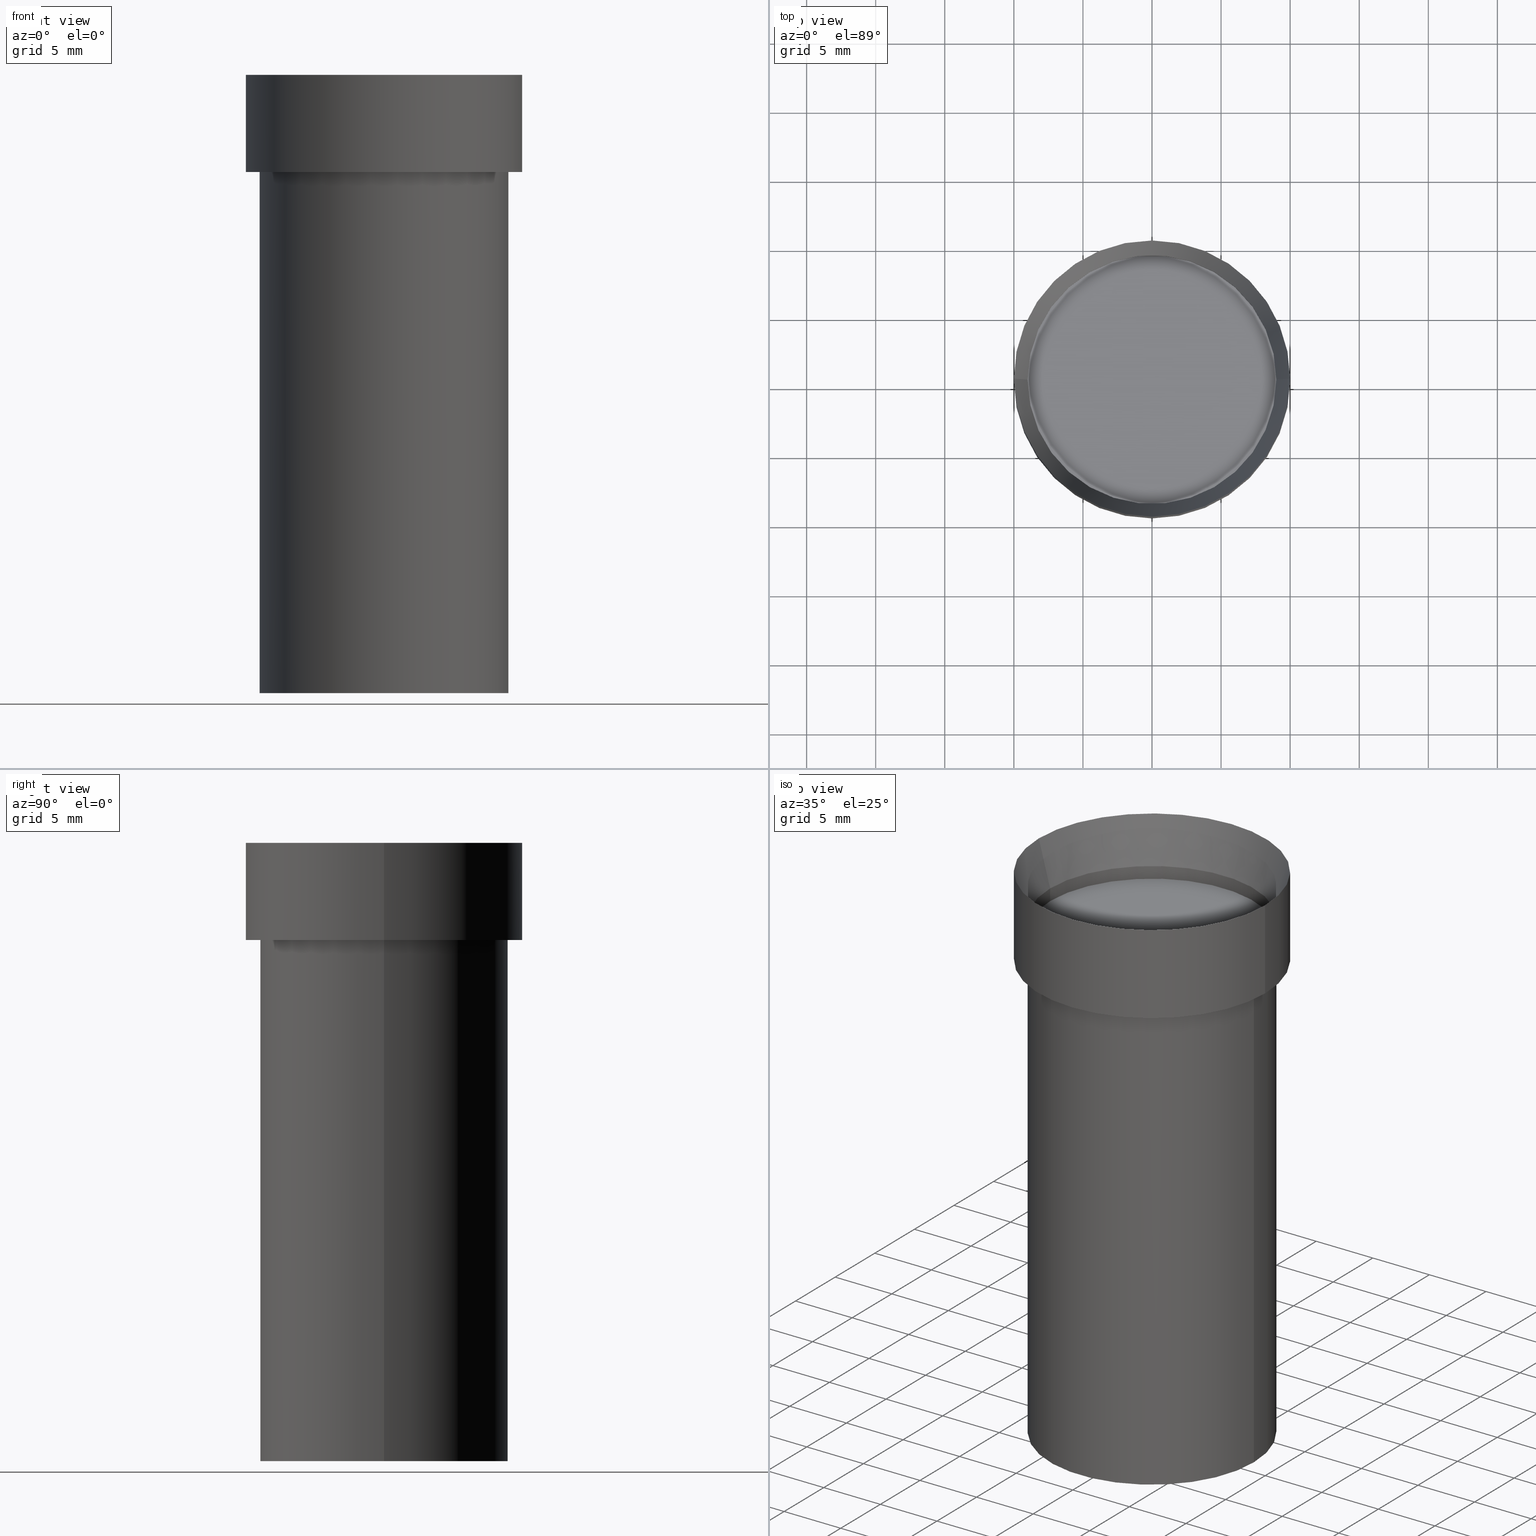
[diagram: canonical four-view strip — front | top / right | iso, engineering-drawing reading convention]
A machine part, canonical four-view strip (front | top / right | iso — engineering-drawing reading convention). The complete STEP part file that produces these views, byte-faithful:
ISO-10303-21;
HEADER;
FILE_DESCRIPTION (( 'STEP AP203' ),
    '1' );
FILE_NAME ('43938.STEP',
    '2024-03-12T19:21:00',
    ( '' ),
    ( '' ),
    'SwSTEP 2.0',
    'SolidWorks 2023',
    '' );
FILE_SCHEMA (( 'CONFIG_CONTROL_DESIGN' ));
ENDSEC;

DATA;
#1 = ORIENTED_EDGE ( 'NONE', *, *, #62, .T. ) ;
#2 = CYLINDRICAL_SURFACE ( 'NONE', #98, 0.3543499999999999983 ) ;
#3 = CARTESIAN_POINT ( 'NONE',  ( -0.3543500000000000538, 2.780716728980804478E-15, 0.07530000000000006133 ) ) ;
#4 = ORIENTED_EDGE ( 'NONE', *, *, #214, .T. ) ;
#5 = EDGE_CURVE ( 'NONE', #405, #118, #221, .T. ) ;
#6 = DIRECTION ( 'NONE',  ( -0.7071067811865715536, 7.493145998870439357E-15, 0.7071067811865232589 ) ) ;
#7 = AXIS2_PLACEMENT_3D ( 'NONE', #139, #283, #177 ) ;
#8 = AXIS2_PLACEMENT_3D ( 'NONE', #421, #245, #462 ) ;
#9 = ORIENTED_EDGE ( 'NONE', *, *, #22, .F. ) ;
#10 = CARTESIAN_POINT ( 'NONE',  ( -1.841438011057409467E-30, 2.629085448148890871E-16, 0.07530000000000006133 ) ) ;
#11 = EDGE_LOOP ( 'NONE', ( #418, #427, #17, #351 ) ) ;
#12 = DIRECTION ( 'NONE',  ( -1.000000000000000000, 6.982962677686265922E-15, -4.876176775795935793E-29 ) ) ;
#13 = COORDINATED_UNIVERSAL_TIME_OFFSET ( 5, 0, .BEHIND. ) ;
#14 = MANIFOLD_SOLID_BREP ( 'Body-Move/Copy2[2]', #251 ) ;
#15 = AXIS2_PLACEMENT_3D ( 'NONE', #336, #134, #24 ) ;
#16 = PERSON_AND_ORGANIZATION_ROLE ( 'design_supplier' ) ;
#17 = ORIENTED_EDGE ( 'NONE', *, *, #238, .T. ) ;
#18 = DIRECTION ( 'NONE',  ( 2.445468806185136597E-29, -3.491481338843145583E-15, -1.000000000000000000 ) ) ;
#19 = DATE_TIME_ROLE ( 'classification_date' ) ;
#20 = EDGE_CURVE ( 'NONE', #103, #246, #381, .T. ) ;
#21 = FACE_OUTER_BOUND ( 'NONE', #33, .T. ) ;
#22 = EDGE_CURVE ( 'NONE', #429, #313, #153, .T. ) ;
#23 = VECTOR ( 'NONE', #273, 39.37007874015748143 ) ;
#24 = DIRECTION ( 'NONE',  ( -1.000000000000000000, 6.982962677686266711E-15, 0.000000000000000000 ) ) ;
#25 = CARTESIAN_POINT ( 'NONE',  ( -0.3543499999999999428, 3.315500661029671558E-15, 0.1150000000000000189 ) ) ;
#26 = PLANE ( 'NONE',  #441 ) ;
#27 = ORIENTED_EDGE ( 'NONE', *, *, #218, .T. ) ;
#28 = DIRECTION ( 'NONE',  ( 1.000000000000000000, 0.000000000000000000, 0.000000000000000000 ) ) ;
#29 = CARTESIAN_POINT ( 'NONE',  ( 0.3937000000000000499, -2.753350281805299909E-15, -0.01499999999999999944 ) ) ;
#30 = APPROVAL_PERSON_ORGANIZATION ( #402, #58, #232 ) ;
#31 = EDGE_LOOP ( 'NONE', ( #217, #314, #255, #394 ) ) ;
#32 = PLANE ( 'NONE',  #366 ) ;
#33 = EDGE_LOOP ( 'NONE', ( #397, #88, #81, #168 ) ) ;
#34 = ORIENTED_EDGE ( 'NONE', *, *, #106, .T. ) ;
#35 = CARTESIAN_POINT ( 'NONE',  ( 0.000000000000000000, 0.000000000000000000, 0.000000000000000000 ) ) ;
#36 = DIRECTION ( 'NONE',  ( 2.445468806185136597E-29, -3.491481338843145583E-15, -1.000000000000000000 ) ) ;
#37 = EDGE_CURVE ( 'NONE', #361, #246, #196, .T. ) ;
#38 = CC_DESIGN_APPROVAL ( #58, ( #367 ) ) ;
#39 = APPROVAL ( #125, 'UNSPECIFIED' ) ;
#40 = EDGE_CURVE ( 'NONE', #313, #429, #104, .T. ) ;
#41 = CC_DESIGN_PERSON_AND_ORGANIZATION_ASSIGNMENT ( #228, #409, ( #367 ) ) ;
#42 = AXIS2_PLACEMENT_3D ( 'NONE', #132, #340, #200 ) ;
#43 = AXIS2_PLACEMENT_3D ( 'NONE', #413, #236, #56 ) ;
#44 = PERSON_AND_ORGANIZATION ( #310, #48 ) ;
#45 = DIRECTION ( 'NONE',  ( 2.438088387897960049E-29, -3.491481338843145188E-15, -1.000000000000000000 ) ) ;
#46 = ADVANCED_FACE ( 'NONE', ( #239 ), #315, .F. ) ;
#47 = DIRECTION ( 'NONE',  ( -1.000000000000000000, 6.982962677686266711E-15, 0.000000000000000000 ) ) ;
#48 = ORGANIZATION ( 'UNSPECIFIED', 'UNSPECIFIED', '' ) ;
#49 = APPROVAL_STATUS ( 'not_yet_approved' ) ;
#50 = CARTESIAN_POINT ( 'NONE',  ( -1.841438011057409467E-30, 2.629085448148890871E-16, 0.07530000000000006133 ) ) ;
#51 = VERTEX_POINT ( 'NONE', #59 ) ;
#52 = CARTESIAN_POINT ( 'NONE',  ( 5.255326964810316247E-45, -7.503214099785695689E-31, -2.149005929463676427E-16 ) ) ;
#53 = SECURITY_CLASSIFICATION_LEVEL ( 'unclassified' ) ;
#54 = ORIENTED_EDGE ( 'NONE', *, *, #286, .T. ) ;
#55 = DIRECTION ( 'NONE',  ( -1.000000000000000000, 6.982962677686265922E-15, 0.000000000000000000 ) ) ;
#56 = DIRECTION ( 'NONE',  ( -1.000000000000000000, 6.982962677686266711E-15, -4.877404199330184597E-29 ) ) ;
#57 = CARTESIAN_POINT ( 'NONE',  ( 0.000000000000000000, 0.000000000000000000, 0.000000000000000000 ) ) ;
#58 = APPROVAL ( #49, 'UNSPECIFIED' ) ;
#59 = CARTESIAN_POINT ( 'NONE',  ( -0.3787000000000000366, 2.644447966039788269E-15, -2.149005929463861069E-16 ) ) ;
#60 = CONICAL_SURFACE ( 'NONE', #43, 0.3787000000000000366, 0.7853981633974547183 ) ;
#61 = LOCAL_TIME ( 15, 21, 0.000000000000000000, #259 ) ;
#62 = EDGE_CURVE ( 'NONE', #361, #89, #387, .T. ) ;
#63 = CARTESIAN_POINT ( 'NONE',  ( -1.841438011057409467E-30, 2.629085448148890871E-16, 0.07530000000000006133 ) ) ;
#64 = AXIS2_PLACEMENT_3D ( 'NONE', #63, #458, #233 ) ;
#65 = EDGE_CURVE ( 'NONE', #101, #103, #204, .T. ) ;
#66 = DIRECTION ( 'NONE',  ( -1.000000000000000000, 6.982962677686265922E-15, 0.000000000000000000 ) ) ;
#67 = DIRECTION ( 'NONE',  ( 0.2588190451025211836, 1.565188264969622559E-15, 0.9659258262890679791 ) ) ;
#68 = CC_DESIGN_PERSON_AND_ORGANIZATION_ASSIGNMENT ( #304, #188, ( #302 ) ) ;
#69 = ORIENTED_EDGE ( 'NONE', *, *, #102, .T. ) ;
#70 = DIRECTION ( 'NONE',  ( 2.445468806185136877E-29, -3.491481338843145188E-15, -1.000000000000000000 ) ) ;
#71 = FACE_OUTER_BOUND ( 'NONE', #242, .T. ) ;
#72 = VECTOR ( 'NONE', #272, 39.37007874015748854 ) ;
#73 = EDGE_CURVE ( 'NONE', #341, #109, #359, .T. ) ;
#74 = AXIS2_PLACEMENT_3D ( 'NONE', #10, #392, #298 ) ;
#75 = ORIENTED_EDGE ( 'NONE', *, *, #368, .T. ) ;
#76 = DIRECTION ( 'NONE',  ( -2.445468806185136597E-29, 3.491481338843145583E-15, 1.000000000000000000 ) ) ;
#77 = ORIENTED_EDGE ( 'NONE', *, *, #182, .T. ) ;
#78 = ORIENTED_EDGE ( 'NONE', *, *, #152, .T. ) ;
#79 = CARTESIAN_POINT ( 'NONE',  ( 0.3787000000000000366, -2.675710436780689970E-15, -2.149005929463490551E-16 ) ) ;
#80 = CC_DESIGN_DATE_AND_TIME_ASSIGNMENT ( #160, #184, ( #399 ) ) ;
#81 = ORIENTED_EDGE ( 'NONE', *, *, #37, .T. ) ;
#82 = VECTOR ( 'NONE', #412, 39.37007874015748143 ) ;
#83 = DIRECTION ( 'NONE',  ( -1.000000000000000000, 6.982962677686266711E-15, -4.877404199330184597E-29 ) ) ;
#84 = APPROVAL_DATE_TIME ( #96, #456 ) ;
#85 = EDGE_CURVE ( 'NONE', #89, #465, #464, .T. ) ;
#86 = APPROVAL_DATE_TIME ( #183, #39 ) ;
#87 = CARTESIAN_POINT ( 'NONE',  ( -0.3787000000000000366, 2.644447966039788269E-15, -2.149005929463861069E-16 ) ) ;
#88 = ORIENTED_EDGE ( 'NONE', *, *, #286, .F. ) ;
#89 = VERTEX_POINT ( 'NONE', #116 ) ;
#90 = CALENDAR_DATE ( 2024, 12, 3 ) ;
#91 = CARTESIAN_POINT ( 'NONE',  ( -6.403611670401447787E-30, 9.142660332389533129E-16, 0.2618561992778351555 ) ) ;
#92 =( NAMED_UNIT ( * ) PLANE_ANGLE_UNIT ( ) SI_UNIT ( $, .RADIAN. ) );
#93 = VECTOR ( 'NONE', #296, 39.37007874015748854 ) ;
#94 = AXIS2_PLACEMENT_3D ( 'NONE', #446, #127, #159 ) ;
#95 = DIRECTION ( 'NONE',  ( 2.445468806185136597E-29, -3.491481338843145583E-15, -1.000000000000000000 ) ) ;
#96 = DATE_AND_TIME ( #339, #317 ) ;
#97 = DIRECTION ( 'NONE',  ( 0.000000000000000000, 0.000000000000000000, 1.000000000000000000 ) ) ;
#98 = AXIS2_PLACEMENT_3D ( 'NONE', #35, #144, #288 ) ;
#99 = LENGTH_MEASURE_WITH_UNIT ( LENGTH_MEASURE( 0.02539999999999999897 ), #282 );
#100 = CARTESIAN_POINT ( 'NONE',  ( -0.3936999999999999389, 3.711672783926467705E-15, 0.2618561992778351555 ) ) ;
#101 = VERTEX_POINT ( 'NONE', #461 ) ;
#102 = EDGE_CURVE ( 'NONE', #89, #109, #206, .T. ) ;
#103 = VERTEX_POINT ( 'NONE', #408 ) ;
#104 = CIRCLE ( 'NONE', #352, 0.3543499999999999983 ) ;
#105 = CIRCLE ( 'NONE', #373, 0.3538500000000000534 ) ;
#106 = EDGE_CURVE ( 'NONE', #51, #436, #264, .T. ) ;
#107 = APPLICATION_CONTEXT ( 'configuration controlled 3d designs of mechanical parts and assemblies' ) ;
#108 = ORIENTED_EDGE ( 'NONE', *, *, #270, .F. ) ;
#109 = VERTEX_POINT ( 'NONE', #138 ) ;
#110 = ORIENTED_EDGE ( 'NONE', *, *, #121, .T. ) ;
#111 = DIRECTION ( 'NONE',  ( 2.445468806185136597E-29, -3.491481338843145583E-15, -1.000000000000000000 ) ) ;
#112 = CONICAL_SURFACE ( 'NONE', #199, 0.3787000000000000366, 0.7853981633974547183 ) ;
#113 = CARTESIAN_POINT ( 'NONE',  ( 0.3936999999999999389, -1.834926372966129509E-15, 0.2618561992778351555 ) ) ;
#114 = CARTESIAN_POINT ( 'NONE',  ( 3.668203209277705088E-31, -5.237222008264718399E-17, -0.01499999999999999944 ) ) ;
#115 = ORIENTED_EDGE ( 'NONE', *, *, #149, .T. ) ;
#116 = CARTESIAN_POINT ( 'NONE',  ( -0.3936999999999999389, 3.711672783926467705E-15, 0.2618561992778351555 ) ) ;
#117 = CARTESIAN_POINT ( 'NONE',  ( -0.3937000000000000499, 2.696820186122435743E-15, -0.01499999999999999944 ) ) ;
#118 = VERTEX_POINT ( 'NONE', #428 ) ;
#119 = ADVANCED_FACE ( 'NONE', ( #179 ), #2, .T. ) ;
#120 = EDGE_LOOP ( 'NONE', ( #212, #318, #9, #141 ) ) ;
#121 = EDGE_CURVE ( 'NONE', #101, #202, #105, .T. ) ;
#122 = ORIENTED_EDGE ( 'NONE', *, *, #454, .F. ) ;
#123 = COORDINATED_UNIVERSAL_TIME_OFFSET ( 5, 0, .BEHIND. ) ;
#124 = DIRECTION ( 'NONE',  ( -1.000000000000000000, 6.982962677686266711E-15, -4.876176775795935793E-29 ) ) ;
#125 = APPROVAL_STATUS ( 'not_yet_approved' ) ;
#126 = ADVANCED_FACE ( 'NONE', ( #443 ), #26, .T. ) ;
#127 = DIRECTION ( 'NONE',  ( 2.445468806185136597E-29, -3.491481338843145583E-15, -1.000000000000000000 ) ) ;
#128 = FACE_OUTER_BOUND ( 'NONE', #120, .T. ) ;
#129 = CONICAL_SURFACE ( 'NONE', #354, 0.3936999999999999389, 0.2617993877991499074 ) ;
#130 = CC_DESIGN_PERSON_AND_ORGANIZATION_ASSIGNMENT ( #262, #16, ( #374 ) ) ;
#131 = CALENDAR_DATE ( 2024, 12, 3 ) ;
#132 = CARTESIAN_POINT ( 'NONE',  ( 3.668203209277704895E-29, -5.237222008264718177E-15, -1.500000000000000222 ) ) ;
#133 = DIRECTION ( 'NONE',  ( -1.000000000000000000, 6.982962677686266711E-15, 0.000000000000000000 ) ) ;
#134 = DIRECTION ( 'NONE',  ( 2.445468806185136597E-29, -3.491481338843145583E-15, -1.000000000000000000 ) ) ;
#135 = ADVANCED_FACE ( 'NONE', ( #226 ), #370, .T. ) ;
#136 = AXIS2_PLACEMENT_3D ( 'NONE', #312, #193, #449 ) ;
#137 = VECTOR ( 'NONE', #70, 39.37007874015748143 ) ;
#138 = CARTESIAN_POINT ( 'NONE',  ( 0.3936999999999999389, -1.834926372966129509E-15, 0.2618561992778351555 ) ) ;
#139 = CARTESIAN_POINT ( 'NONE',  ( -6.403611670401447787E-30, 9.142660332389533129E-16, 0.2618561992778351555 ) ) ;
#140 = ORIENTED_EDGE ( 'NONE', *, *, #466, .T. ) ;
#141 = ORIENTED_EDGE ( 'NONE', *, *, #466, .F. ) ;
#142 = ORIENTED_EDGE ( 'NONE', *, *, #85, .F. ) ;
#143 = CARTESIAN_POINT ( 'NONE',  ( 0.3543499999999999428, -1.953909421918648105E-15, 0.1150000000000000189 ) ) ;
#144 = DIRECTION ( 'NONE',  ( 2.445468806185136597E-29, -3.491481338843145583E-15, -1.000000000000000000 ) ) ;
#145 = ORIENTED_EDGE ( 'NONE', *, *, #321, .F. ) ;
#146 = ORIENTED_EDGE ( 'NONE', *, *, #37, .F. ) ;
#147 = VECTOR ( 'NONE', #67, 39.37007874015748854 ) ;
#148 = DIRECTION ( 'NONE',  ( 2.445468806185136597E-29, -3.491481338843145583E-15, -1.000000000000000000 ) ) ;
#149 = EDGE_CURVE ( 'NONE', #202, #246, #224, .T. ) ;
#150 = EDGE_LOOP ( 'NONE', ( #433, #248 ) ) ;
#151 = EDGE_LOOP ( 'NONE', ( #390, #249 ) ) ;
#152 = EDGE_CURVE ( 'NONE', #436, #51, #154, .T. ) ;
#153 = CIRCLE ( 'NONE', #42, 0.3543499999999999983 ) ;
#154 = CIRCLE ( 'NONE', #424, 0.3787000000000000366 ) ;
#155 = CARTESIAN_POINT ( 'NONE',  ( 3.668203209277705088E-31, -5.237222008264718399E-17, -0.01499999999999999944 ) ) ;
#156 = ORIENTED_EDGE ( 'NONE', *, *, #40, .F. ) ;
#157 = APPLICATION_PROTOCOL_DEFINITION ( 'international standard', 'config_control_design', 1994, #169 ) ;
#158 = CARTESIAN_POINT ( 'NONE',  ( 3.668203209277704895E-29, -5.237222008264718177E-15, -1.500000000000000222 ) ) ;
#159 = DIRECTION ( 'NONE',  ( -1.000000000000000000, 6.982962677686266711E-15, -4.876176775795935793E-29 ) ) ;
#160 = DATE_AND_TIME ( #90, #280 ) ;
#161 = FACE_OUTER_BOUND ( 'NONE', #11, .T. ) ;
#162 = DIRECTION ( 'NONE',  ( -1.000000000000000000, 6.982962677686266711E-15, 0.000000000000000000 ) ) ;
#163 = DIRECTION ( 'NONE',  ( -2.438088387897960049E-29, 3.491481338843145188E-15, 1.000000000000000000 ) ) ;
#164 = CYLINDRICAL_SURFACE ( 'NONE', #347, 0.3543499999999999983 ) ;
#165 = CIRCLE ( 'NONE', #244, 0.3937000000000000499 ) ;
#166 = CC_DESIGN_APPROVAL ( #456, ( #399 ) ) ;
#167 = DIRECTION ( 'NONE',  ( -1.000000000000000000, 6.982962677686266711E-15, 0.000000000000000000 ) ) ;
#168 = ORIENTED_EDGE ( 'NONE', *, *, #438, .T. ) ;
#169 = APPLICATION_CONTEXT ( 'configuration controlled 3d designs of mechanical parts and assemblies' ) ;
#170 = CARTESIAN_POINT ( 'NONE',  ( 0.3543500000000000538, -2.211504280023240001E-15, 0.07530000000000006133 ) ) ;
#171 = AXIS2_PLACEMENT_3D ( 'NONE', #393, #363, #327 ) ;
#172 = CARTESIAN_POINT ( 'NONE',  ( -0.3543499999999999983, -2.762809183426589877E-15, -1.500000000000000222 ) ) ;
#173 = ORIENTED_EDGE ( 'NONE', *, *, #440, .F. ) ;
#174 = DIRECTION ( 'NONE',  ( 2.438088387897960049E-29, -3.491481338843145188E-15, -1.000000000000000000 ) ) ;
#175 = MANIFOLD_SOLID_BREP ( 'Body-Move/Copy2[1]', #457 ) ;
#176 = ORIENTED_EDGE ( 'NONE', *, *, #106, .F. ) ;
#177 = DIRECTION ( 'NONE',  ( -1.000000000000000000, 6.982962677686266711E-15, 0.000000000000000000 ) ) ;
#178 = DIRECTION ( 'NONE',  ( 0.7071067811865521247, -7.319954787623271823E-15, -0.7071067811865430208 ) ) ;
#179 = FACE_OUTER_BOUND ( 'NONE', #297, .T. ) ;
#180 = ORIENTED_EDGE ( 'NONE', *, *, #252, .T. ) ;
#181 = LOCAL_TIME ( 15, 21, 0.000000000000000000, #450 ) ;
#182 = EDGE_CURVE ( 'NONE', #465, #425, #463, .T. ) ;
#183 = DATE_AND_TIME ( #194, #181 ) ;
#184 = DATE_TIME_ROLE ( 'creation_date' ) ;
#185 = DIRECTION ( 'NONE',  ( 2.445468806185136877E-29, -3.491481338843145188E-15, -1.000000000000000000 ) ) ;
#186 = CIRCLE ( 'NONE', #74, 0.3543500000000000538 ) ;
#187 = LINE ( 'NONE', #437, #309 ) ;
#188 = PERSON_AND_ORGANIZATION_ROLE ( 'design_owner' ) ;
#189 = DIRECTION ( 'NONE',  ( 2.445468806185136597E-29, -3.491481338843145583E-15, -1.000000000000000000 ) ) ;
#190 = ORIENTED_EDGE ( 'NONE', *, *, #73, .T. ) ;
#191 = CARTESIAN_POINT ( 'NONE',  ( 5.255326964810316247E-45, -7.503214099785695689E-31, -2.149005929463676427E-16 ) ) ;
#192 = DIRECTION ( 'NONE',  ( -1.000000000000000000, 6.982962677686266711E-15, -4.877404199330184597E-29 ) ) ;
#193 = DIRECTION ( 'NONE',  ( -2.445468806185136597E-29, 3.491481338843145583E-15, 1.000000000000000000 ) ) ;
#194 = CALENDAR_DATE ( 2024, 12, 3 ) ;
#195 = ORIENTED_EDGE ( 'NONE', *, *, #238, .F. ) ;
#196 = LINE ( 'NONE', #269, #293 ) ;
#197 = ADVANCED_FACE ( 'NONE', ( #357 ), #32, .T. ) ;
#198 = DIRECTION ( 'NONE',  ( -1.000000000000000000, 6.982962677686266711E-15, -4.876176775795935793E-29 ) ) ;
#199 = AXIS2_PLACEMENT_3D ( 'NONE', #52, #95, #192 ) ;
#200 = DIRECTION ( 'NONE',  ( -1.000000000000000000, 6.982962677686266711E-15, 0.000000000000000000 ) ) ;
#201 = CARTESIAN_POINT ( 'NONE',  ( 0.000000000000000000, 0.000000000000000000, 0.000000000000000000 ) ) ;
#202 = VERTEX_POINT ( 'NONE', #225 ) ;
#203 = ADVANCED_FACE ( 'NONE', ( #71 ), #222, .F. ) ;
#204 = LINE ( 'NONE', #170, #93 ) ;
#205 = CARTESIAN_POINT ( 'NONE',  ( 0.3543499999999999983, -2.431017465510342392E-15, 1.712721831774753992E-29 ) ) ;
#206 = CIRCLE ( 'NONE', #7, 0.3936999999999999389 ) ;
#207 = AXIS2_PLACEMENT_3D ( 'NONE', #208, #460, #278 ) ;
#208 = CARTESIAN_POINT ( 'NONE',  ( 0.000000000000000000, 0.000000000000000000, 0.000000000000000000 ) ) ;
#209 = ORIENTED_EDGE ( 'NONE', *, *, #182, .F. ) ;
#210 = EDGE_LOOP ( 'NONE', ( #417, #54, #190, #230 ) ) ;
#211 = FACE_OUTER_BOUND ( 'NONE', #290, .T. ) ;
#212 = ORIENTED_EDGE ( 'NONE', *, *, #5, .T. ) ;
#213 = CARTESIAN_POINT ( 'NONE',  ( -6.403611670401447787E-30, 9.142660332389533129E-16, 0.2618561992778351555 ) ) ;
#214 = EDGE_CURVE ( 'NONE', #118, #405, #415, .T. ) ;
#215 = EDGE_LOOP ( 'NONE', ( #145, #176, #27, #77 ) ) ;
#216 = DIRECTION ( 'NONE',  ( 1.000000000000000000, -6.982962677686266711E-15, 0.000000000000000000 ) ) ;
#217 = ORIENTED_EDGE ( 'NONE', *, *, #149, .F. ) ;
#218 = EDGE_CURVE ( 'NONE', #51, #465, #237, .T. ) ;
#219 = PRODUCT_DEFINITION_SHAPE ( 'NONE', 'NONE',  #399 ) ;
#220 = CARTESIAN_POINT ( 'NONE',  ( 3.576687321579069994E-29, -5.368277968210015545E-15, -1.500000000000000222 ) ) ;
#221 = CIRCLE ( 'NONE', #422, 0.3543499999999999983 ) ;
#222 = CONICAL_SURFACE ( 'NONE', #400, 0.3936999999999999389, 0.2617993877991499074 ) ;
#223 = CC_DESIGN_PERSON_AND_ORGANIZATION_ASSIGNMENT ( #44, #261, ( #399 ) ) ;
#224 = LINE ( 'NONE', #3, #240 ) ;
#225 = CARTESIAN_POINT ( 'NONE',  ( -0.3538500000000000534, 2.778067501806693672E-15, 0.07480000000000006088 ) ) ;
#226 = FACE_OUTER_BOUND ( 'NONE', #151, .T. ) ;
#227 = CYLINDRICAL_SURFACE ( 'NONE', #388, 0.3543499999999999983 ) ;
#228 = PERSON_AND_ORGANIZATION ( #310, #48 ) ;
#229 = CARTESIAN_POINT ( 'NONE',  ( 0.000000000000000000, 0.000000000000000000, 0.000000000000000000 ) ) ;
#230 = ORIENTED_EDGE ( 'NONE', *, *, #102, .F. ) ;
#231 = APPROVAL_PERSON_ORGANIZATION ( #308, #456, #404 ) ;
#232 = APPROVAL_ROLE ( '' ) ;
#233 = DIRECTION ( 'NONE',  ( 1.000000000000000000, -6.982962677686266711E-15, 0.000000000000000000 ) ) ;
#234 = ADVANCED_FACE ( 'NONE', ( #128 ), #227, .T. ) ;
#235 = APPROVAL_STATUS ( 'not_yet_approved' ) ;
#236 = DIRECTION ( 'NONE',  ( 2.445468806185136597E-29, -3.491481338843145583E-15, -1.000000000000000000 ) ) ;
#237 = LINE ( 'NONE', #87, #82 ) ;
#238 = EDGE_CURVE ( 'NONE', #425, #465, #165, .T. ) ;
#239 = FACE_OUTER_BOUND ( 'NONE', #285, .T. ) ;
#240 = VECTOR ( 'NONE', #6, 39.37007874015748854 ) ;
#241 = LINE ( 'NONE', #205, #23 ) ;
#242 = EDGE_LOOP ( 'NONE', ( #276, #1, #331, #377 ) ) ;
#243 = AXIS2_PLACEMENT_3D ( 'NONE', #50, #189, #451 ) ;
#244 = AXIS2_PLACEMENT_3D ( 'NONE', #155, #380, #55 ) ;
#245 = DIRECTION ( 'NONE',  ( 2.445468806185136597E-29, -3.491481338843145583E-15, -1.000000000000000000 ) ) ;
#246 = VERTEX_POINT ( 'NONE', #407 ) ;
#247 = ORIENTED_EDGE ( 'NONE', *, *, #214, .F. ) ;
#248 = ORIENTED_EDGE ( 'NONE', *, *, #319, .F. ) ;
#249 = ORIENTED_EDGE ( 'NONE', *, *, #40, .T. ) ;
#250 = CARTESIAN_POINT ( 'NONE',  ( -2.812289127112907395E-30, 4.015203539669618446E-16, 0.1150000000000000189 ) ) ;
#251 = CLOSED_SHELL ( 'NONE', ( #281, #358, #46, #396, #203, #435, #306, #384, #126, #197, #265, #386 ) ) ;
#252 = EDGE_CURVE ( 'NONE', #109, #89, #303, .T. ) ;
#253 = FACE_OUTER_BOUND ( 'NONE', #210, .T. ) ;
#254 = PRODUCT_RELATED_PRODUCT_CATEGORY ( 'detail', '', ( #302 ) ) ;
#255 = ORIENTED_EDGE ( 'NONE', *, *, #65, .T. ) ;
#256 = PERSON_AND_ORGANIZATION ( #310, #48 ) ;
#257 = AXIS2_PLACEMENT_3D ( 'NONE', #447, #266, #345 ) ;
#258 = CARTESIAN_POINT ( 'NONE',  ( 2.644447966039789453E-15, 0.3787000000000000366, -1.429674279493083145E-15 ) ) ;
#259 = COORDINATED_UNIVERSAL_TIME_OFFSET ( 5, 0, .BEHIND. ) ;
#260 = EDGE_LOOP ( 'NONE', ( #34, #78 ) ) ;
#261 = PERSON_AND_ORGANIZATION_ROLE ( 'creator' ) ;
#262 = PERSON_AND_ORGANIZATION ( #310, #48 ) ;
#263 = DIRECTION ( 'NONE',  ( 2.445468806185136597E-29, -3.491481338843145583E-15, -1.000000000000000000 ) ) ;
#264 = CIRCLE ( 'NONE', #365, 0.3787000000000000366 ) ;
#265 = ADVANCED_FACE ( 'NONE', ( #311 ), #112, .F. ) ;
#266 = DIRECTION ( 'NONE',  ( 2.445468806185136597E-29, -3.491481338843145583E-15, -1.000000000000000000 ) ) ;
#267 = CIRCLE ( 'NONE', #8, 0.3538500000000000534 ) ;
#268 = DATE_AND_TIME ( #131, #61 ) ;
#269 = CARTESIAN_POINT ( 'NONE',  ( -0.3543499999999999983, 2.474412824838128694E-15, -1.727873240503289749E-29 ) ) ;
#270 = EDGE_CURVE ( 'NONE', #118, #313, #371, .T. ) ;
#271 = CARTESIAN_POINT ( 'NONE',  ( 0.000000000000000000, 0.000000000000000000, 0.000000000000000000 ) ) ;
#272 = DIRECTION ( 'NONE',  ( -0.2588190451025211836, 5.211531920934547886E-15, 0.9659258262890679791 ) ) ;
#273 = DIRECTION ( 'NONE',  ( 2.445468806185136877E-29, -3.491481338843145188E-15, -1.000000000000000000 ) ) ;
#274 = AXIS2_PLACEMENT_3D ( 'NONE', #201, #420, #275 ) ;
#275 = DIRECTION ( 'NONE',  ( -1.000000000000000000, 6.982962677686266711E-15, -4.876176775795935793E-29 ) ) ;
#276 = ORIENTED_EDGE ( 'NONE', *, *, #440, .T. ) ;
#277 = MECHANICAL_CONTEXT ( 'NONE', #107, 'mechanical' ) ;
#278 = DIRECTION ( 'NONE',  ( -1.000000000000000000, 6.982962677686266711E-15, -4.876176775795935793E-29 ) ) ;
#279 = CYLINDRICAL_SURFACE ( 'NONE', #274, 0.3543499999999999983 ) ;
#280 = LOCAL_TIME ( 15, 21, 0.000000000000000000, #13 ) ;
#281 = ADVANCED_FACE ( 'NONE', ( #337 ), #379, .T. ) ;
#282 =( LENGTH_UNIT ( ) NAMED_UNIT ( * ) SI_UNIT ( $, .METRE. ) );
#283 = DIRECTION ( 'NONE',  ( 2.445468806185136597E-29, -3.491481338843145583E-15, -1.000000000000000000 ) ) ;
#284 = LINE ( 'NONE', #389, #382 ) ;
#285 = EDGE_LOOP ( 'NONE', ( #110, #115, #364, #356 ) ) ;
#286 = EDGE_CURVE ( 'NONE', #361, #341, #411, .T. ) ;
#287 = FACE_OUTER_BOUND ( 'NONE', #307, .T. ) ;
#288 = DIRECTION ( 'NONE',  ( -1.000000000000000000, 6.982962677686266711E-15, -4.876176775795935793E-29 ) ) ;
#289 = CARTESIAN_POINT ( 'NONE',  ( 5.255326964810316247E-45, -7.503214099785695689E-31, -2.149005929463676427E-16 ) ) ;
#290 = EDGE_LOOP ( 'NONE', ( #173, #75, #301, #146 ) ) ;
#291 = ORIENTED_EDGE ( 'NONE', *, *, #5, .F. ) ;
#292 = ADVANCED_BREP_SHAPE_REPRESENTATION ( '43938', ( #175, #14, #294 ), #432 ) ;
#293 = VECTOR ( 'NONE', #455, 39.37007874015748143 ) ;
#294 = AXIS2_PLACEMENT_3D ( 'NONE', #57, #97, #28 ) ;
#295 = ORIENTED_EDGE ( 'NONE', *, *, #454, .T. ) ;
#296 = DIRECTION ( 'NONE',  ( 0.7071067811865715536, -2.468850131082509496E-15, 0.7071067811865232589 ) ) ;
#297 = EDGE_LOOP ( 'NONE', ( #108, #4, #140, #156 ) ) ;
#298 = DIRECTION ( 'NONE',  ( -1.000000000000000000, 6.982962677686266711E-15, 0.000000000000000000 ) ) ;
#299 = CARTESIAN_POINT ( 'NONE',  ( 0.3543499999999999983, -4.919047067569968280E-15, -1.500000000000000222 ) ) ;
#300 = LINE ( 'NONE', #448, #137 ) ;
#301 = ORIENTED_EDGE ( 'NONE', *, *, #20, .T. ) ;
#302 = PRODUCT ( '43938', '43938', '', ( #277 ) ) ;
#303 = CIRCLE ( 'NONE', #401, 0.3936999999999999389 ) ;
#304 = PERSON_AND_ORGANIZATION ( #310, #48 ) ;
#305 = APPROVAL_DATE_TIME ( #268, #58 ) ;
#306 = ADVANCED_FACE ( 'NONE', ( #21 ), #164, .F. ) ;
#307 = EDGE_LOOP ( 'NONE', ( #291, #247 ) ) ;
#308 = PERSON_AND_ORGANIZATION ( #310, #48 ) ;
#309 = VECTOR ( 'NONE', #338, 39.37007874015748143 ) ;
#310 = PERSON ( 'UNSPECIFIED', 'UNSPECIFIED', 'UNSPECIFIED', ('UNSPECIFIED'), ('UNSPECIFIED'), ('UNSPECIFIED') ) ;
#311 = FACE_OUTER_BOUND ( 'NONE', #215, .T. ) ;
#312 = CARTESIAN_POINT ( 'NONE',  ( -1.841438011057409467E-30, 2.629085448148890871E-16, 0.07530000000000006133 ) ) ;
#313 = VERTEX_POINT ( 'NONE', #299 ) ;
#314 = ORIENTED_EDGE ( 'NONE', *, *, #319, .T. ) ;
#315 = CONICAL_SURFACE ( 'NONE', #136, 0.3543500000000000538, 0.7853981633974824739 ) ;
#316 = CONICAL_SURFACE ( 'NONE', #64, 0.3543500000000000538, 0.7853981633974824739 ) ;
#317 = LOCAL_TIME ( 15, 21, 0.000000000000000000, #444 ) ;
#318 = ORIENTED_EDGE ( 'NONE', *, *, #270, .T. ) ;
#319 = EDGE_CURVE ( 'NONE', #202, #101, #267, .T. ) ;
#320 = DIRECTION ( 'NONE',  ( 2.445468806185136877E-29, -3.491481338843145188E-15, -1.000000000000000000 ) ) ;
#321 = EDGE_CURVE ( 'NONE', #436, #425, #284, .T. ) ;
#322 = VECTOR ( 'NONE', #185, 39.37007874015748143 ) ;
#323 = DIRECTION ( 'NONE',  ( -1.000000000000000000, 6.982962677686265922E-15, -4.876176775795935793E-29 ) ) ;
#324 = DIRECTION ( 'NONE',  ( -2.445468806185136597E-29, 3.491481338843145583E-15, 1.000000000000000000 ) ) ;
#325 = ORIENTED_EDGE ( 'NONE', *, *, #85, .T. ) ;
#326 = EDGE_LOOP ( 'NONE', ( #122, #180, #325, #195 ) ) ;
#327 = DIRECTION ( 'NONE',  ( 1.000000000000000000, -6.982962677686265922E-15, 4.876176775795935793E-29 ) ) ;
#328 = CARTESIAN_POINT ( 'NONE',  ( -0.3936999999999999389, 2.749192406205082822E-15, -1.919750796630859611E-29 ) ) ;
#329 = CIRCLE ( 'NONE', #335, 0.3543499999999999428 ) ;
#330 = DIRECTION ( 'NONE',  ( 2.445468806185136597E-29, -3.491481338843145583E-15, -1.000000000000000000 ) ) ;
#331 = ORIENTED_EDGE ( 'NONE', *, *, #252, .F. ) ;
#332 = PERSON_AND_ORGANIZATION_ROLE ( 'creator' ) ;
#333 = DATE_AND_TIME ( #372, #391 ) ;
#334 = APPROVAL_ROLE ( '' ) ;
#335 = AXIS2_PLACEMENT_3D ( 'NONE', #250, #330, #47 ) ;
#336 = CARTESIAN_POINT ( 'NONE',  ( -1.829210667026481802E-30, 2.611628041454672384E-16, 0.07479999999999997762 ) ) ;
#337 = FACE_OUTER_BOUND ( 'NONE', #414, .T. ) ;
#338 = DIRECTION ( 'NONE',  ( 2.445468806185136877E-29, -3.491481338843145188E-15, -1.000000000000000000 ) ) ;
#339 = CALENDAR_DATE ( 2024, 12, 3 ) ;
#340 = DIRECTION ( 'NONE',  ( 2.445468806185136597E-29, -3.491481338843145583E-15, -1.000000000000000000 ) ) ;
#341 = VERTEX_POINT ( 'NONE', #143 ) ;
#342 =( NAMED_UNIT ( * ) SI_UNIT ( $, .STERADIAN. ) SOLID_ANGLE_UNIT ( ) );
#343 = CARTESIAN_POINT ( 'NONE',  ( 0.3543499999999999983, -2.431017465510342392E-15, 1.712721831774753992E-29 ) ) ;
#344 = UNCERTAINTY_MEASURE_WITH_UNIT (LENGTH_MEASURE( 1.000000000000000082E-05 ), #353, 'distance_accuracy_value', 'NONE');
#345 = DIRECTION ( 'NONE',  ( -1.000000000000000000, 6.982962677686266711E-15, 0.000000000000000000 ) ) ;
#346 = DIMENSIONAL_EXPONENTS ( 1.000000000000000000, 0.000000000000000000, 0.000000000000000000, 0.000000000000000000, 0.000000000000000000, 0.000000000000000000, 0.000000000000000000 ) ;
#347 = AXIS2_PLACEMENT_3D ( 'NONE', #271, #442, #124 ) ;
#348 = APPROVAL_PERSON_ORGANIZATION ( #406, #39, #334 ) ;
#349 = DIRECTION ( 'NONE',  ( 2.445468806185136597E-29, -3.491481338843145583E-15, -1.000000000000000000 ) ) ;
#350 = CARTESIAN_POINT ( 'NONE',  ( -0.3543499999999999983, 2.735575628983595883E-15, 0.07479999999999997762 ) ) ;
#351 = ORIENTED_EDGE ( 'NONE', *, *, #218, .F. ) ;
#352 = AXIS2_PLACEMENT_3D ( 'NONE', #158, #349, #133 ) ;
#353 =( CONVERSION_BASED_UNIT ( 'INCH', #99 ) LENGTH_UNIT ( ) NAMED_UNIT ( #346 ) );
#354 = AXIS2_PLACEMENT_3D ( 'NONE', #362, #76, #395 ) ;
#355 = ADVANCED_FACE ( 'NONE', ( #287 ), #430, .T. ) ;
#356 = ORIENTED_EDGE ( 'NONE', *, *, #65, .F. ) ;
#357 = FACE_OUTER_BOUND ( 'NONE', #260, .T. ) ;
#358 = ADVANCED_FACE ( 'NONE', ( #161 ), #60, .F. ) ;
#359 = LINE ( 'NONE', #113, #147 ) ;
#360 = AXIS2_PLACEMENT_3D ( 'NONE', #220, #45, #323 ) ;
#361 = VERTEX_POINT ( 'NONE', #25 ) ;
#362 = CARTESIAN_POINT ( 'NONE',  ( -6.403611670401447787E-30, 9.142660332389533129E-16, 0.2618561992778351555 ) ) ;
#363 = DIRECTION ( 'NONE',  ( -2.438088387897960049E-29, 3.491481338843145188E-15, 1.000000000000000000 ) ) ;
#364 = ORIENTED_EDGE ( 'NONE', *, *, #20, .F. ) ;
#365 = AXIS2_PLACEMENT_3D ( 'NONE', #191, #383, #83 ) ;
#366 = AXIS2_PLACEMENT_3D ( 'NONE', #258, #174, #12 ) ;
#367 = SECURITY_CLASSIFICATION ( '', '', #53 ) ;
#368 = EDGE_CURVE ( 'NONE', #341, #103, #241, .T. ) ;
#369 = DIRECTION ( 'NONE',  ( -1.000000000000000000, 6.982962677686265922E-15, 0.000000000000000000 ) ) ;
#370 = PLANE ( 'NONE',  #360 ) ;
#371 = LINE ( 'NONE', #343, #322 ) ;
#372 = CALENDAR_DATE ( 2024, 12, 3 ) ;
#373 = AXIS2_PLACEMENT_3D ( 'NONE', #431, #111, #369 ) ;
#374 = PRODUCT_DEFINITION_FORMATION_WITH_SPECIFIED_SOURCE ( 'ANY', '', #302, .NOT_KNOWN. ) ;
#375 = SHAPE_DEFINITION_REPRESENTATION ( #219, #292 ) ;
#376 = CARTESIAN_POINT ( 'NONE',  ( -1.829210667026483204E-30, 2.611628041454673863E-16, 0.07480000000000003313 ) ) ;
#377 = ORIENTED_EDGE ( 'NONE', *, *, #73, .F. ) ;
#378 = FACE_OUTER_BOUND ( 'NONE', #326, .T. ) ;
#379 = CYLINDRICAL_SURFACE ( 'NONE', #94, 0.3936999999999999389 ) ;
#380 = DIRECTION ( 'NONE',  ( 2.445468806185136597E-29, -3.491481338843145583E-15, -1.000000000000000000 ) ) ;
#381 = CIRCLE ( 'NONE', #243, 0.3543500000000000538 ) ;
#382 = VECTOR ( 'NONE', #178, 39.37007874015748143 ) ;
#383 = DIRECTION ( 'NONE',  ( 2.445468806185136597E-29, -3.491481338843145583E-15, -1.000000000000000000 ) ) ;
#384 = ADVANCED_FACE ( 'NONE', ( #385 ), #316, .F. ) ;
#385 = FACE_OUTER_BOUND ( 'NONE', #31, .T. ) ;
#386 = ADVANCED_FACE ( 'NONE', ( #378 ), #453, .T. ) ;
#387 = LINE ( 'NONE', #100, #72 ) ;
#388 = AXIS2_PLACEMENT_3D ( 'NONE', #229, #263, #198 ) ;
#389 = CARTESIAN_POINT ( 'NONE',  ( 0.3787000000000000366, -2.598070591756080425E-15, -2.149005929463493263E-16 ) ) ;
#390 = ORIENTED_EDGE ( 'NONE', *, *, #22, .T. ) ;
#391 = LOCAL_TIME ( 15, 21, 0.000000000000000000, #123 ) ;
#392 = DIRECTION ( 'NONE',  ( 2.445468806185136597E-29, -3.491481338843145583E-15, -1.000000000000000000 ) ) ;
#393 = CARTESIAN_POINT ( 'NONE',  ( 2.474412824838126328E-15, 0.3543500000000002759, 0.07479999999999872862 ) ) ;
#394 = ORIENTED_EDGE ( 'NONE', *, *, #438, .F. ) ;
#395 = DIRECTION ( 'NONE',  ( 1.000000000000000000, -6.982962677686266711E-15, 0.000000000000000000 ) ) ;
#396 = ADVANCED_FACE ( 'NONE', ( #211 ), #279, .F. ) ;
#397 = ORIENTED_EDGE ( 'NONE', *, *, #368, .F. ) ;
#398 = DIRECTION ( 'NONE',  ( 1.000000000000000000, -6.982962677686265922E-15, 4.876176775795935793E-29 ) ) ;
#399 = PRODUCT_DEFINITION ( 'UNKNOWN', '', #374, #426 ) ;
#400 = AXIS2_PLACEMENT_3D ( 'NONE', #213, #324, #216 ) ;
#401 = AXIS2_PLACEMENT_3D ( 'NONE', #91, #18, #167 ) ;
#402 = PERSON_AND_ORGANIZATION ( #310, #48 ) ;
#403 = CC_DESIGN_SECURITY_CLASSIFICATION ( #367, ( #374 ) ) ;
#404 = APPROVAL_ROLE ( '' ) ;
#405 = VERTEX_POINT ( 'NONE', #350 ) ;
#406 = PERSON_AND_ORGANIZATION ( #310, #48 ) ;
#407 = CARTESIAN_POINT ( 'NONE',  ( -0.3543500000000000538, 2.737321369653018176E-15, 0.07530000000000006133 ) ) ;
#408 = CARTESIAN_POINT ( 'NONE',  ( 0.3543500000000000538, -2.098803016119417641E-15, 0.07530000000000006133 ) ) ;
#409 = PERSON_AND_ORGANIZATION_ROLE ( 'classification_officer' ) ;
#410 = VECTOR ( 'NONE', #320, 39.37007874015748143 ) ;
#411 = CIRCLE ( 'NONE', #257, 0.3543499999999999428 ) ;
#412 = DIRECTION ( 'NONE',  ( -0.7071067811865521247, 2.468850131082304787E-15, -0.7071067811865430208 ) ) ;
#413 = CARTESIAN_POINT ( 'NONE',  ( 5.255326964810316247E-45, -7.503214099785695689E-31, -2.149005929463676427E-16 ) ) ;
#414 = EDGE_LOOP ( 'NONE', ( #69, #295, #209, #142 ) ) ;
#415 = CIRCLE ( 'NONE', #15, 0.3543499999999999983 ) ;
#416 = CC_DESIGN_DATE_AND_TIME_ASSIGNMENT ( #333, #19, ( #367 ) ) ;
#417 = ORIENTED_EDGE ( 'NONE', *, *, #62, .F. ) ;
#418 = ORIENTED_EDGE ( 'NONE', *, *, #152, .F. ) ;
#419 = CARTESIAN_POINT ( 'NONE',  ( -1.829210667026481802E-30, 2.611628041454672384E-16, 0.07479999999999997762 ) ) ;
#420 = DIRECTION ( 'NONE',  ( 2.445468806185136597E-29, -3.491481338843145583E-15, -1.000000000000000000 ) ) ;
#421 = CARTESIAN_POINT ( 'NONE',  ( -1.829210667026483904E-30, 2.611628041454674849E-16, 0.07480000000000006088 ) ) ;
#422 = AXIS2_PLACEMENT_3D ( 'NONE', #419, #445, #162 ) ;
#423 = DIRECTION ( 'NONE',  ( -1.000000000000000000, 6.982962677686266711E-15, -4.877404199330184597E-29 ) ) ;
#424 = AXIS2_PLACEMENT_3D ( 'NONE', #289, #36, #423 ) ;
#425 = VERTEX_POINT ( 'NONE', #29 ) ;
#426 = DESIGN_CONTEXT ( 'detailed design', #169, 'design' ) ;
#427 = ORIENTED_EDGE ( 'NONE', *, *, #321, .T. ) ;
#428 = CARTESIAN_POINT ( 'NONE',  ( 0.3543499999999999983, -4.919047067569968280E-15, 0.07479999999999997762 ) ) ;
#429 = VERTEX_POINT ( 'NONE', #172 ) ;
#430 = PLANE ( 'NONE',  #171 ) ;
#431 = CARTESIAN_POINT ( 'NONE',  ( -1.829210667026483904E-30, 2.611628041454674849E-16, 0.07480000000000006088 ) ) ;
#432 =( GEOMETRIC_REPRESENTATION_CONTEXT ( 3 ) GLOBAL_UNCERTAINTY_ASSIGNED_CONTEXT ( ( #344 ) ) GLOBAL_UNIT_ASSIGNED_CONTEXT ( ( #353, #92, #342 ) ) REPRESENTATION_CONTEXT ( 'NONE', 'WORKASPACE' ) );
#433 = ORIENTED_EDGE ( 'NONE', *, *, #121, .F. ) ;
#434 = CC_DESIGN_APPROVAL ( #39, ( #374 ) ) ;
#435 = ADVANCED_FACE ( 'NONE', ( #253 ), #129, .F. ) ;
#436 = VERTEX_POINT ( 'NONE', #79 ) ;
#437 = CARTESIAN_POINT ( 'NONE',  ( 0.3936999999999999389, -2.700978061722651647E-15, 1.902916848228363047E-29 ) ) ;
#438 = EDGE_CURVE ( 'NONE', #246, #103, #186, .T. ) ;
#439 = CC_DESIGN_PERSON_AND_ORGANIZATION_ASSIGNMENT ( #256, #332, ( #374 ) ) ;
#440 = EDGE_CURVE ( 'NONE', #341, #361, #329, .T. ) ;
#441 = AXIS2_PLACEMENT_3D ( 'NONE', #376, #163, #398 ) ;
#442 = DIRECTION ( 'NONE',  ( 2.445468806185136597E-29, -3.491481338843145583E-15, -1.000000000000000000 ) ) ;
#443 = FACE_OUTER_BOUND ( 'NONE', #150, .T. ) ;
#444 = COORDINATED_UNIVERSAL_TIME_OFFSET ( 5, 0, .BEHIND. ) ;
#445 = DIRECTION ( 'NONE',  ( 2.445468806185136597E-29, -3.491481338843145583E-15, -1.000000000000000000 ) ) ;
#446 = CARTESIAN_POINT ( 'NONE',  ( 0.000000000000000000, 0.000000000000000000, 0.000000000000000000 ) ) ;
#447 = CARTESIAN_POINT ( 'NONE',  ( -2.812289127112907395E-30, 4.015203539669618446E-16, 0.1150000000000000189 ) ) ;
#448 = CARTESIAN_POINT ( 'NONE',  ( -0.3543499999999999983, 2.474412824838128694E-15, -1.727873240503289749E-29 ) ) ;
#449 = DIRECTION ( 'NONE',  ( 1.000000000000000000, -6.982962677686266711E-15, 0.000000000000000000 ) ) ;
#450 = COORDINATED_UNIVERSAL_TIME_OFFSET ( 5, 0, .BEHIND. ) ;
#451 = DIRECTION ( 'NONE',  ( -1.000000000000000000, 6.982962677686266711E-15, 0.000000000000000000 ) ) ;
#452 = AXIS2_PLACEMENT_3D ( 'NONE', #114, #148, #66 ) ;
#453 = CYLINDRICAL_SURFACE ( 'NONE', #207, 0.3936999999999999389 ) ;
#454 = EDGE_CURVE ( 'NONE', #109, #425, #187, .T. ) ;
#455 = DIRECTION ( 'NONE',  ( 2.445468806185136877E-29, -3.491481338843145188E-15, -1.000000000000000000 ) ) ;
#456 = APPROVAL ( #235, 'UNSPECIFIED' ) ;
#457 = CLOSED_SHELL ( 'NONE', ( #234, #135, #119, #355 ) ) ;
#458 = DIRECTION ( 'NONE',  ( -2.445468806185136597E-29, 3.491481338843145583E-15, 1.000000000000000000 ) ) ;
#459 = APPLICATION_PROTOCOL_DEFINITION ( 'international standard', 'config_control_design', 1994, #107 ) ;
#460 = DIRECTION ( 'NONE',  ( 2.445468806185136597E-29, -3.491481338843145583E-15, -1.000000000000000000 ) ) ;
#461 = CARTESIAN_POINT ( 'NONE',  ( 0.3538500000000000534, -2.210631409688528855E-15, 0.07480000000000006088 ) ) ;
#462 = DIRECTION ( 'NONE',  ( -1.000000000000000000, 6.982962677686265922E-15, 0.000000000000000000 ) ) ;
#463 = CIRCLE ( 'NONE', #452, 0.3937000000000000499 ) ;
#464 = LINE ( 'NONE', #328, #410 ) ;
#465 = VERTEX_POINT ( 'NONE', #117 ) ;
#466 = EDGE_CURVE ( 'NONE', #405, #429, #300, .T. ) ;
ENDSEC;
END-ISO-10303-21;
